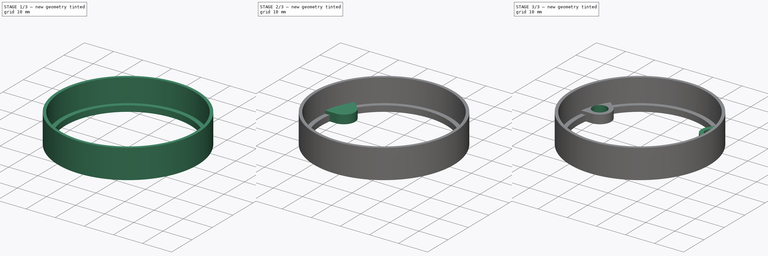
[diagram: build sequence overview — one tinted view per stage of 3, left to right]
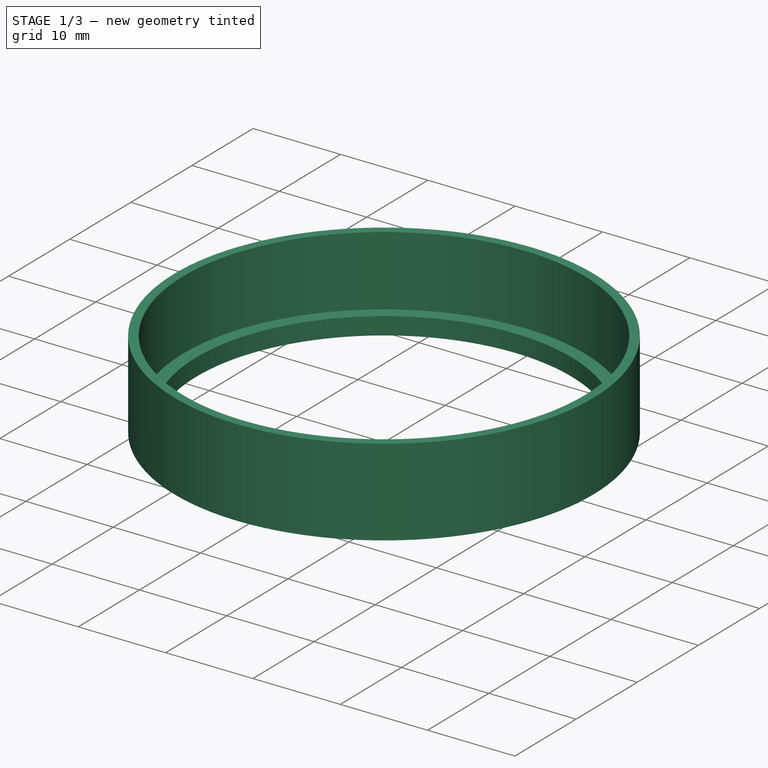
[diagram: stage 1 of 3 — iso view after this stage's code; geometry added in this stage tinted green]
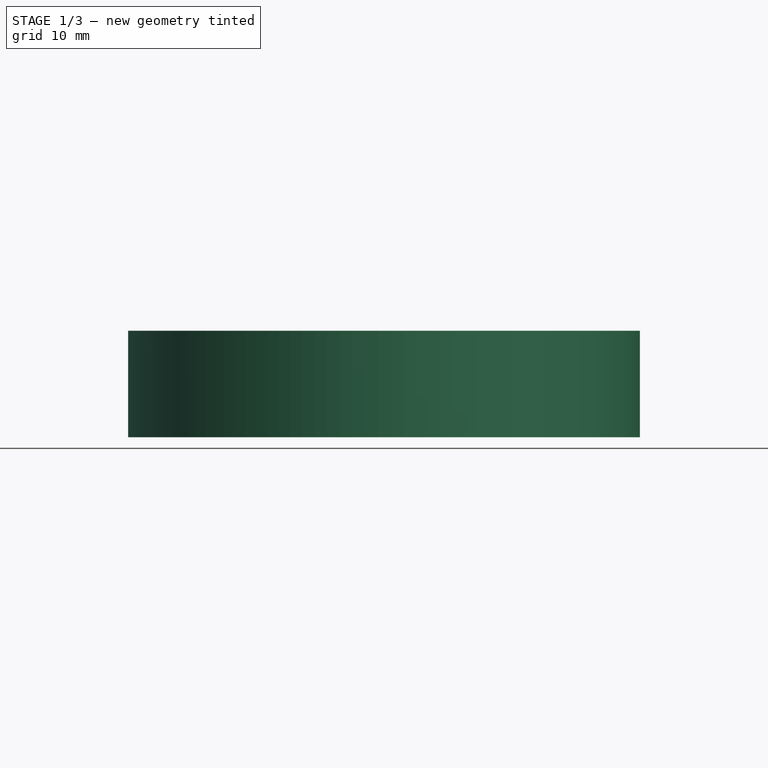
[diagram: stage 1 of 3 — front view after this stage's code; geometry added in this stage tinted green]
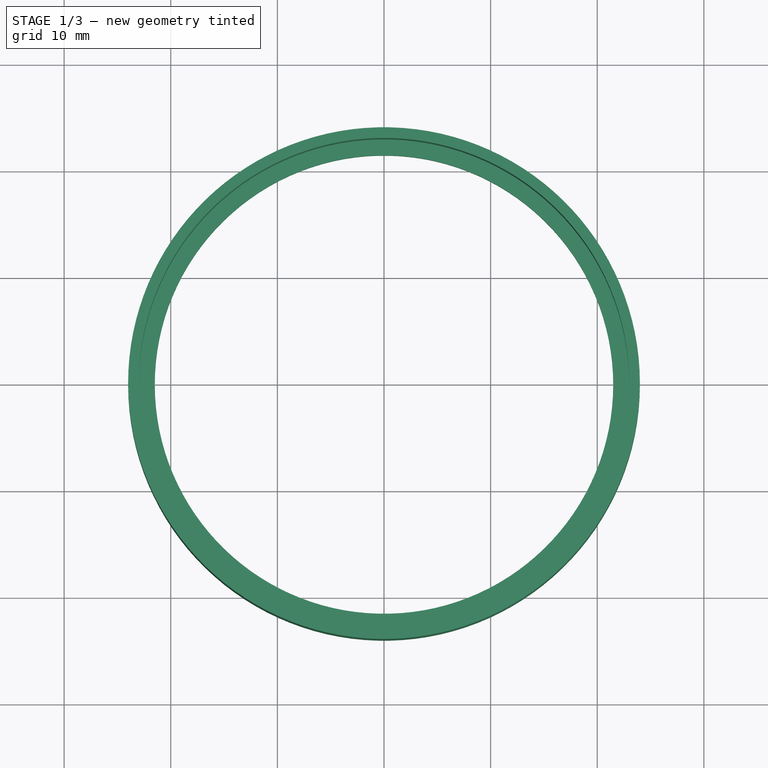
[diagram: stage 1 of 3 — top view after this stage's code; geometry added in this stage tinted green]
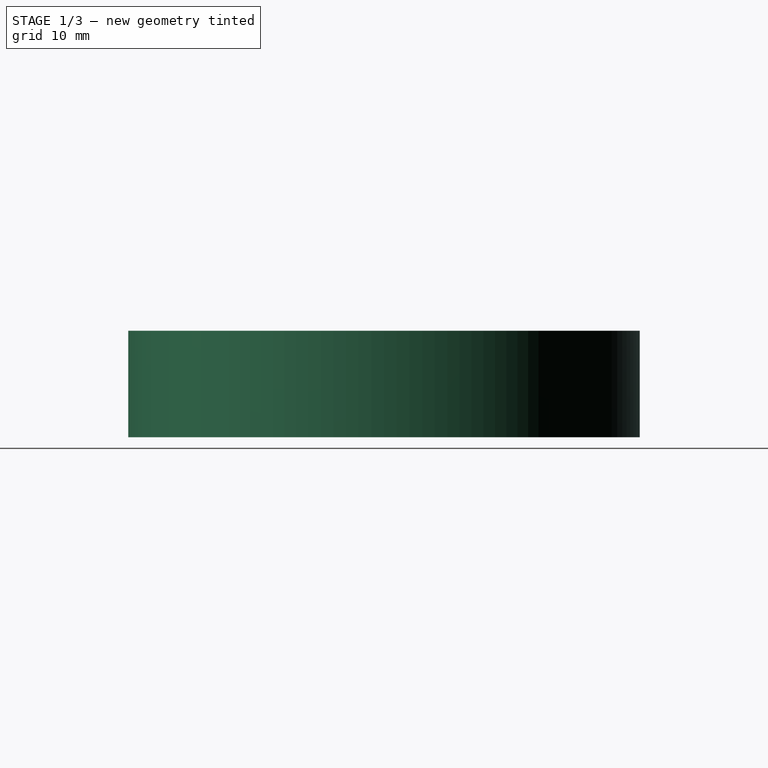
[diagram: stage 1 of 3 — right view after this stage's code; geometry added in this stage tinted green]
FCSTD DOCUMENT  (FreeCAD 0.22R37841 (Git))
Label: cover
License: All rights reserved
LicenseURL: http://en.wikipedia.org/wiki/All_rights_reserved
objects: Sketcher::SketchObject×4, PartDesign::CoordinateSystem×2, PartDesign::Pocket×2, PartDesign::Revolution×1, PartDesign::Pad×1, PartDesign::PolarPattern×1, PartDesign::Body×1, App::Part×1
note: 16 computed .brp shape members not serialized (recipe doc carries the construction recipe); baked Part::Feature solids carry a one-line shape summary decoded from their .brp

FEATURE [PartDesign::CoordinateSystem] LCS_Origin
  AttacherType = Attacher::AttachEngine3D
  AttachmentSupport = -> [X_Axis]
  MapMode = 2
FEATURE [PartDesign::CoordinateSystem] LCS_Origin001
  AttacherType = Attacher::AttachEngine3D
  AttachmentSupport = -> [X_Axis001]
  MapMode = 2
FEATURE [Sketcher::SketchObject] Sketch
  AttachmentSupport = -> [XZ_Plane001]
  FullyConstrained = true
  MapMode = 5
  Placement = pos=(0,0,0) rot=(1,0,0;1.5708rad)
  sketch-geometry (8):
    g0: LineSegment StartX=0 StartY=0 StartZ=0 EndX=0 EndY=13 EndZ=0
    g1: LineSegment StartX=21.5 StartY=5 StartZ=0 EndX=21.5 EndY=3 EndZ=0
    g2: LineSegment StartX=21.5 StartY=3 StartZ=0 EndX=24 EndY=3 EndZ=0
    g3: LineSegment StartX=24 StartY=3 StartZ=0 EndX=24 EndY=13 EndZ=0
    g4: LineSegment StartX=23 StartY=13 StartZ=0 EndX=23 EndY=5 EndZ=0
    g5: LineSegment StartX=23 StartY=5 StartZ=0 EndX=21.5 EndY=5 EndZ=0
    g6: LineSegment StartX=24 StartY=13 StartZ=0 EndX=23 EndY=13 EndZ=0
    g7: GeomPoint X=21.5 Y=4 Z=0
  constraints (22):
    c: Coincident(g0,g-1)
    c: PointOnObject(g0,g-2)
    c: Coincident(g2,g1)
    c: Horizontal(g2)
    c: Coincident(g3,g2)
    c: Vertical(g3)
    c: Vertical(g4)
    c: Coincident(g5,g4)
    c: Coincident(g5,g1)
    c: Vertical(g1)
    c: DistanceX(g0,g4) = 23
    c: Horizontal(g5)
    c: Coincident(g6,g3)
    c: Horizontal(g6)
    c: DistanceY(g1,g1) = 2
    c: DistanceX(g0,g1) = 21.5
    c: Coincident(g6,g4)
    c: DistanceX(g0,g2) = 24
    c: DistanceY(g3,g3) = 10
    c: Symmetric(g1,g1,g7)
    c: DistanceY(g0,g7) = 4
    c: Horizontal(g4,g0)
FEATURE [PartDesign::Revolution] Revolution
  Angle = 360
  Angle2 = 60
  Axis = (0,2e-16,1)
  Base = (0,0,0)
  Placement = pos=(0,0,0) rot=(1,0,0;1.5708rad)
  Profile = -> Sketch
  ReferenceAxis = -> Sketch [V_Axis]
  Reversed = true
  Suppressed = false
  Type = 0
FEATURE [Sketcher::SketchObject] Sketch001
  AttachmentSupport = -> [XY_Plane001]
  FullyConstrained = true
  MapMode = 5
  sketch-geometry (9):
    g0: Circle CenterX=0 CenterY=0 CenterZ=0 NormalX=0 NormalY=0 NormalZ=1 AngleXU=0 Radius=17.5
    g1: Circle CenterX=-17.5 CenterY=0 CenterZ=0 NormalX=0 NormalY=0 NormalZ=1 AngleXU=0 Radius=2.625
    g2: Circle CenterX=-8.75 CenterY=15.1554 CenterZ=0 NormalX=0 NormalY=0 NormalZ=1 AngleXU=0 Radius=2.625
    g3: Circle CenterX=8.75 CenterY=15.1554 CenterZ=0 NormalX=0 NormalY=0 NormalZ=1 AngleXU=0 Radius=2.625
    g4: Circle CenterX=17.5 CenterY=0 CenterZ=0 NormalX=0 NormalY=0 NormalZ=1 AngleXU=0 Radius=2.625
    g5: Circle CenterX=8.75 CenterY=-15.1554 CenterZ=0 NormalX=0 NormalY=0 NormalZ=1 AngleXU=0 Radius=2.625
    g6: Circle CenterX=-8.75 CenterY=-15.1554 CenterZ=0 NormalX=0 NormalY=0 NormalZ=1 AngleXU=0 Radius=2.625
    g7: LineSegment StartX=-8.75 StartY=15.1554 StartZ=0 EndX=0 EndY=0 EndZ=0
    g8: LineSegment StartX=0 StartY=0 StartZ=0 EndX=8.75 EndY=-15.1554 EndZ=0
  constraints (24):
    c: Coincident(g0,g-1)
    c: PointOnObject(g1,g0)
    c: PointOnObject(g2,g0)
    c: PointOnObject(g3,g0)
    c: PointOnObject(g4,g0)
    c: PointOnObject(g5,g0)
    c: PointOnObject(g6,g0)
    c: PointOnObject(g1,g-1)
    c: PointOnObject(g4,g-1)
    c: Equal(g1,g2)
    c: Equal(g2,g3)
    c: Equal(g3,g4)
    c: Equal(g4,g5)
    c: Equal(g5,g6)
    c: Diameter(g4) = 5.25
    c: Coincident(g7,g2)
    c: Coincident(g7,g0)
    c: Coincident(g8,g0)
    c: Coincident(g8,g5)
    c: Parallel(g7,g8)
    c: Vertical(g2,g6)
    c: Vertical(g5,g3)
    c: Angle(g-1,g7) = 2.0944
    c: Diameter(g0) = 35
FEATURE [PartDesign::Pocket] Pocket
  BaseFeature = -> Revolution
  Direction = (0,0,-1)
  Length = 5.5
  Length2 = 5
  Placement = pos=(0,0,0) rot=(1,0,0;1.5708rad)
  Profile = -> Sketch001
  ReferenceAxis = -> Sketch001 [N_Axis]
  Reversed = true
  Suppressed = false
  Type = 0
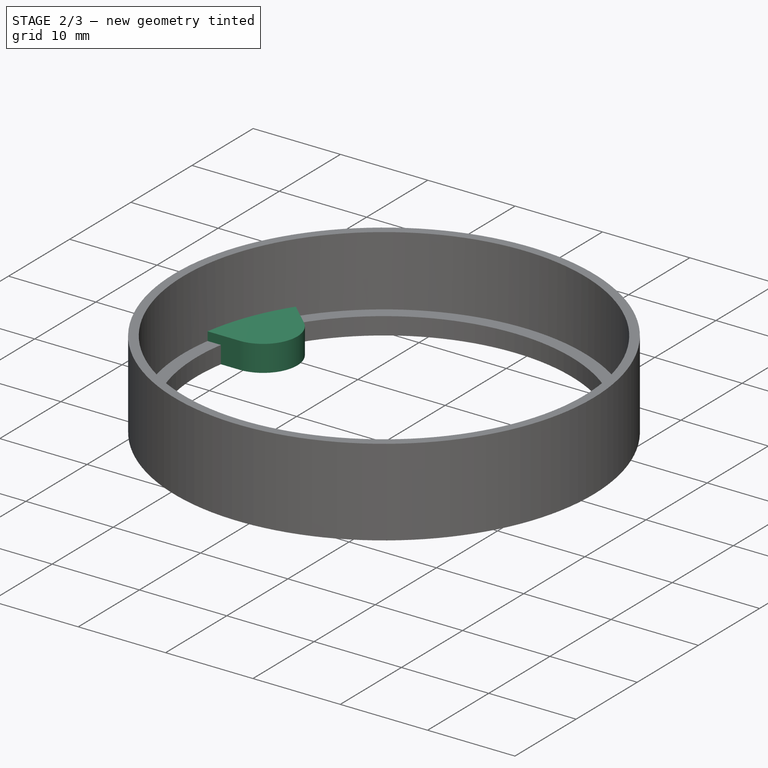
[diagram: stage 2 of 3 — iso view after this stage's code; geometry added in this stage tinted green]
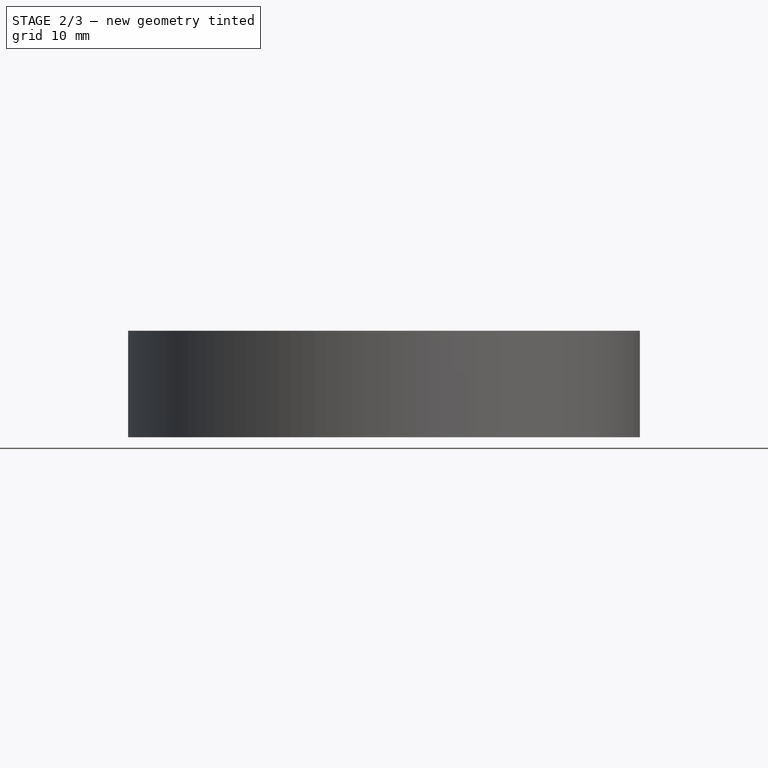
[diagram: stage 2 of 3 — front view after this stage's code; geometry added in this stage tinted green]
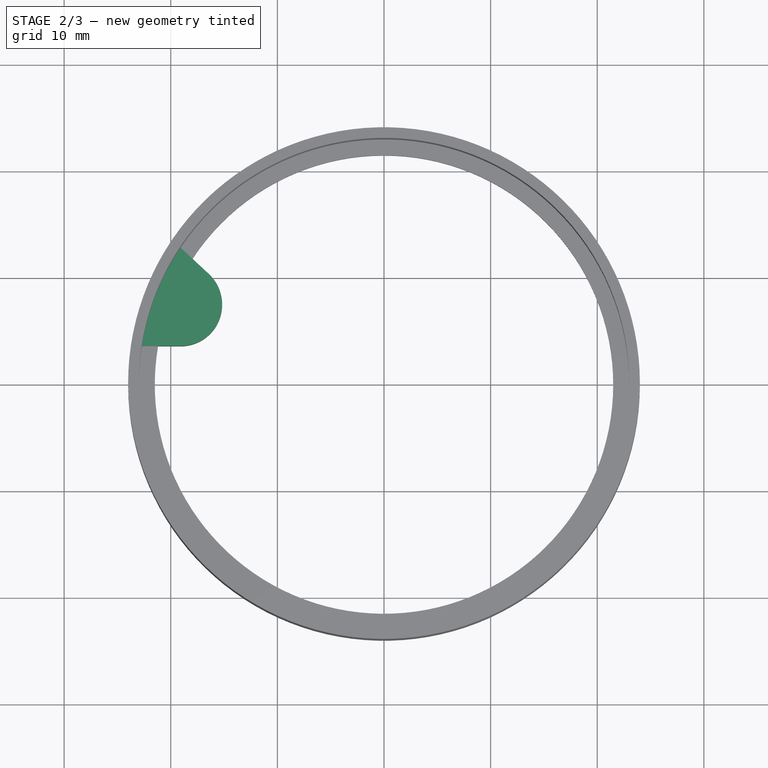
[diagram: stage 2 of 3 — top view after this stage's code; geometry added in this stage tinted green]
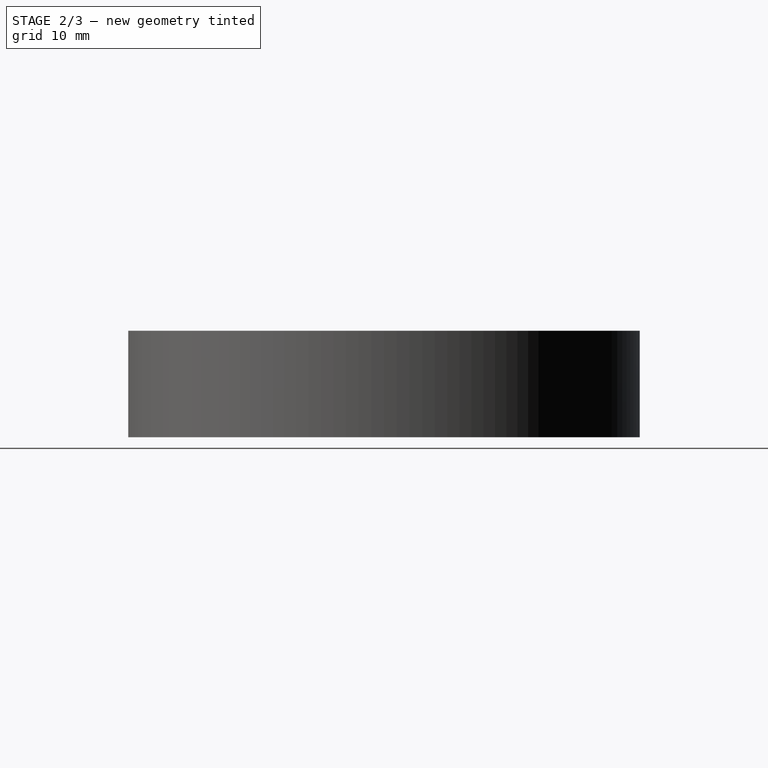
[diagram: stage 2 of 3 — right view after this stage's code; geometry added in this stage tinted green]
FEATURE [Sketcher::SketchObject] Sketch002
  AttachmentSupport = -> [XY_Plane001]
  FullyConstrained = true
  MapMode = 5
  sketch-geometry (14):
    g0: LineSegment StartX=16.0346 StartY=12.7727 StartZ=0 EndX=-3.04425 EndY=20.2727 EndZ=0
    g1: LineSegment StartX=-3.04425 StartY=20.2727 StartZ=0 EndX=-19.0788 EndY=7.49996 EndZ=0
    g2: LineSegment StartX=-19.0788 StartY=7.49996 StartZ=0 EndX=-16.0346 EndY=-12.7727 EndZ=0
    g3: LineSegment StartX=-16.0346 StartY=-12.7727 StartZ=0 EndX=3.04425 EndY=-20.2727 EndZ=0
    g4: LineSegment StartX=3.04425 StartY=-20.2727 StartZ=0 EndX=19.0788 EndY=-7.49996 EndZ=0
    g5: LineSegment StartX=19.0788 StartY=-7.49996 StartZ=0 EndX=16.0346 EndY=12.7727 EndZ=0
    g6: Circle CenterX=0 CenterY=0 CenterZ=0 NormalX=0 NormalY=0 NormalZ=1 AngleXU=0 Radius=20.5
    g7: Circle CenterX=-3.04425 CenterY=20.2727 CenterZ=0 NormalX=0 NormalY=0 NormalZ=1 AngleXU=0 Radius=2.5
    g8: Circle CenterX=16.0346 CenterY=12.7727 CenterZ=0 NormalX=0 NormalY=0 NormalZ=1 AngleXU=0 Radius=2.5
    g9: Circle CenterX=19.0788 CenterY=-7.49996 CenterZ=0 NormalX=0 NormalY=0 NormalZ=1 AngleXU=0 Radius=2.5
    g10: Circle CenterX=3.04425 CenterY=-20.2727 CenterZ=0 NormalX=0 NormalY=0 NormalZ=1 AngleXU=0 Radius=2.5
    g11: Circle CenterX=-16.0346 CenterY=-12.7727 CenterZ=0 NormalX=0 NormalY=0 NormalZ=1 AngleXU=0 Radius=2.5
    g12: Circle CenterX=-19.0788 CenterY=7.49996 CenterZ=0 NormalX=0 NormalY=0 NormalZ=1 AngleXU=0 Radius=2.5
    g13: LineSegment StartX=0 StartY=0 StartZ=0 EndX=-19.0788 EndY=7.49996 EndZ=0
  constraints (30):
    c: Coincident(g0,g1)
    c: Coincident(g1,g2)
    c: Coincident(g2,g3)
    c: Coincident(g3,g4)
    c: Coincident(g4,g5)
    c: Coincident(g5,g0)
    c: Equal(g0, g1-g5) x5
    c: PointOnObject(g0,g6)
    c: PointOnObject(g1,g6)
    c: PointOnObject(g2,g6)
    c: PointOnObject(g3,g6)
    c: PointOnObject(g4,g6)
    c: PointOnObject(g5,g6)
    c: Coincident(g6,g-1)
    c: Coincident(g7,g0)
    c: Coincident(g8,g0)
    c: Coincident(g9,g4)
    c: Coincident(g10,g3)
    c: Coincident(g11,g2)
    c: Coincident(g12,g1)
    c: Equal(g12,g7)
    c: Equal(g7,g8)
    c: Equal(g8,g9)
    c: Equal(g9,g10)
    c: Equal(g10,g11)
    c: Diameter(g12) = 5
    c: Coincident(g13,g6)
    c: Coincident(g13,g12)
    c: Angle(g-1,g13) = 2.76704
    c: Distance(g13) = 20.5
FEATURE [Sketcher::SketchObject] Sketch003
  AttachmentOffset = pos=(0,0,3) rot=(0,0,1;0rad)
  AttachmentSupport = -> [XY_Plane001]
  FullyConstrained = true
  MapMode = 5
  Placement = pos=(0,0,3) rot=(0,0,1;0rad)
  sketch-geometry (7):
    g0: ArcOfCircle CenterX=0 CenterY=0 CenterZ=0 NormalX=0 NormalY=0 NormalZ=1 AngleXU=0 Radius=23 StartAngle=2.54967 EndAngle=2.98442
    g1: ArcOfCircle CenterX=-19.0788 CenterY=7.49996 CenterZ=0 NormalX=0 NormalY=0 NormalZ=1 AngleXU=0 Radius=3.89996 StartAngle=4.71239 EndAngle=7.10489
    g2: LineSegment StartX=-19.0788 StartY=3.6 StartZ=0 EndX=-22.7165 EndY=3.6 EndZ=0
    g3: LineSegment StartX=0 StartY=0 StartZ=0 EndX=-19.9186 EndY=11.5 EndZ=0
    g4: LineSegment StartX=0 StartY=0 StartZ=0 EndX=-19.0788 EndY=7.49996 EndZ=0
    g5: LineSegment StartX=-16.423 StartY=10.3559 StartZ=0 EndX=-19.0869 EndY=12.8331 EndZ=0
    g6: GeomPoint X=-9.15788 Y=3.6 Z=0
  constraints (18):
    c: Coincident(g0,g-1)
    c: Coincident(g2,g0)
    c: Tangent(g2,g1) = 1.5708
    c: Horizontal(g2)
    c: Coincident(g3,g0)
    c: PointOnObject(g3,g0)
    c: Angle(g-1,g3) = 2.61799
    c: Radius(g0) = 23
    c: DistanceY(g0,g0) = 3.6
    c: Coincident(g4,g0)
    c: Coincident(g4,g1)
    c: Angle(g-1,g4) = 2.76704
    c: Distance(g4) = 20.5
    c: Coincident(g5,g0)
    c: Tangent(g5,g1) = -1.5708
    c: PointOnObject(g6,g4)
    c: PointOnObject(g6,g2)
    c: PointOnObject(g6,g5)
FEATURE [PartDesign::Pad] Pad
  BaseFeature = -> Pocket
  Direction = (0,0,1)
  Length = 3
  Length2 = 10
  Placement = pos=(0,0,0) rot=(1,0,0;1.5708rad)
  Profile = -> Sketch003
  ReferenceAxis = -> Sketch003 [N_Axis]
  Suppressed = false
  Type = 0
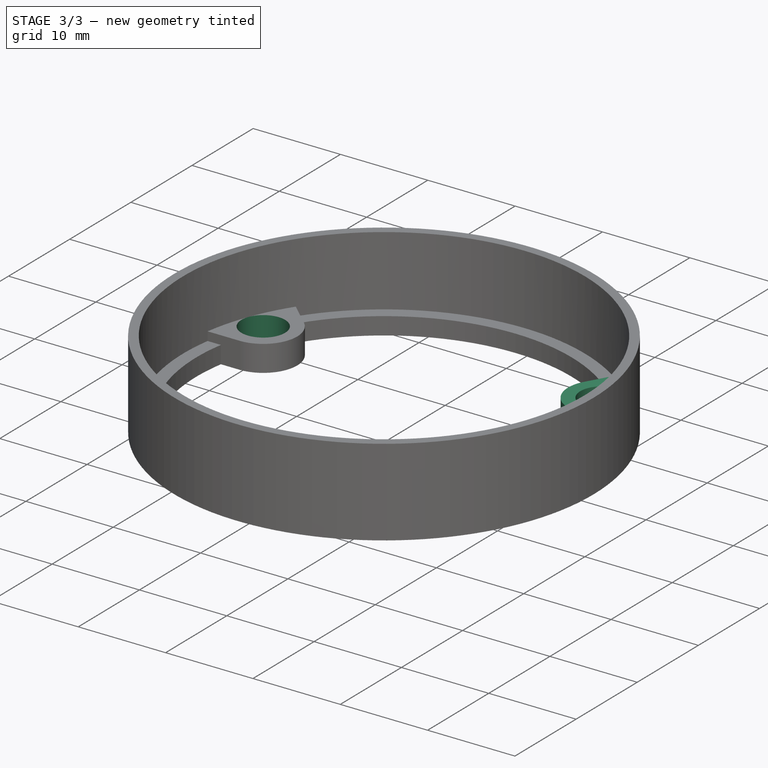
[diagram: stage 3 of 3 — iso view after this stage's code; geometry added in this stage tinted green]
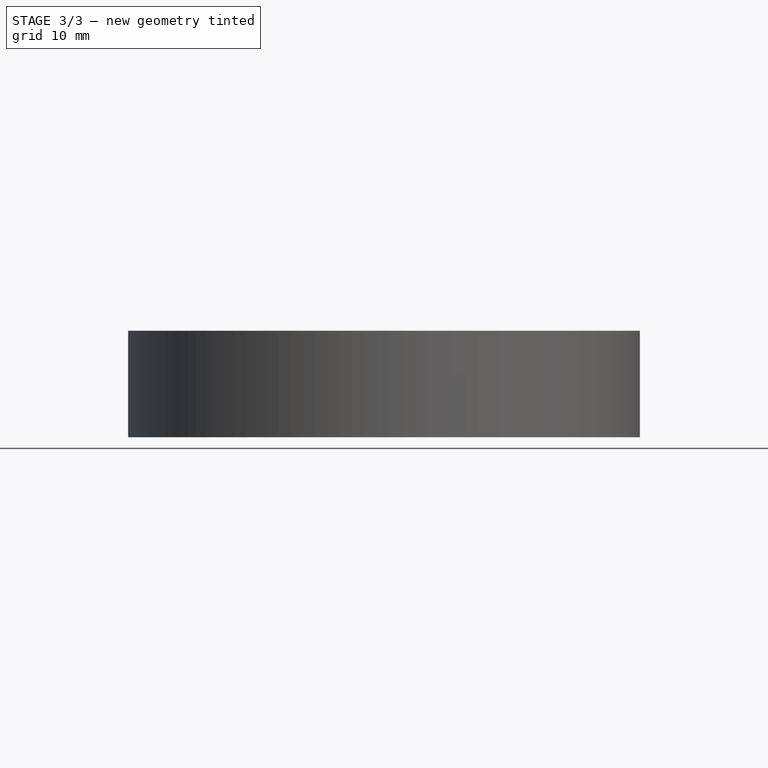
[diagram: stage 3 of 3 — front view after this stage's code; geometry added in this stage tinted green]
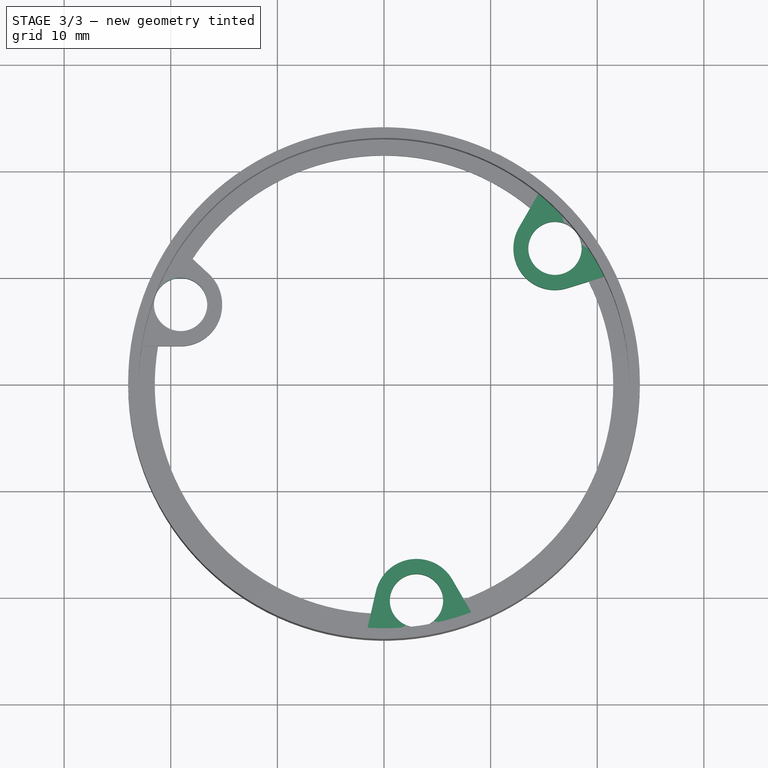
[diagram: stage 3 of 3 — top view after this stage's code; geometry added in this stage tinted green]
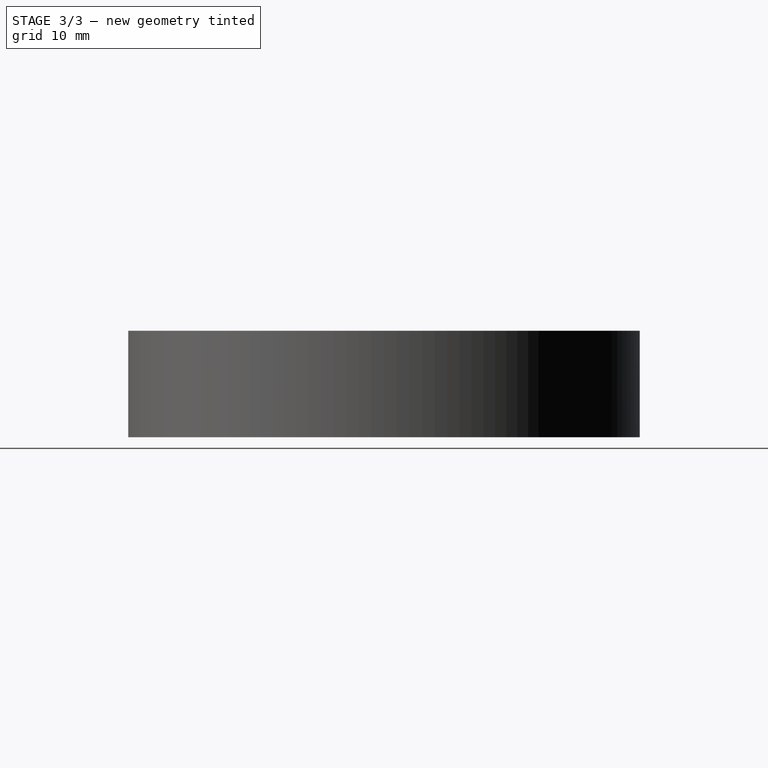
[diagram: stage 3 of 3 — right view after this stage's code; geometry added in this stage tinted green]
FEATURE [PartDesign::PolarPattern] PolarPattern
  Angle = 360
  Axis = -> Sketch003 [N_Axis]
  BaseFeature = -> Pad
  Mode = 0
  Occurrences = 3
  Offset = 120
  Originals = -> [Pad]
  Placement = pos=(0,0,0) rot=(1,0,0;1.5708rad)
  Suppressed = false
  TransformMode = 0
FEATURE [PartDesign::Pocket] Pocket001
  BaseFeature = -> PolarPattern
  Direction = (0,0,-1)
  Length = 5
  Length2 = 5
  Placement = pos=(0,0,0) rot=(1,0,0;1.5708rad)
  Profile = -> Sketch002
  ReferenceAxis = -> Sketch002 [N_Axis]
  Reversed = true
  Suppressed = false
  Type = 1
FEATURE [PartDesign::Body] Body
  AllowCompound = false
  Group = -> [LCS_Origin001,Sketch,Revolution,Sketch001,Pocket,Sketch003,Pad,PolarPattern,Sketch002,Pocket001]
  Origin = -> Origin001
  Tip = -> Pocket001
FEATURE [App::Part] Part
  Group = -> [LCS_Origin,Body]
  Origin = -> Origin
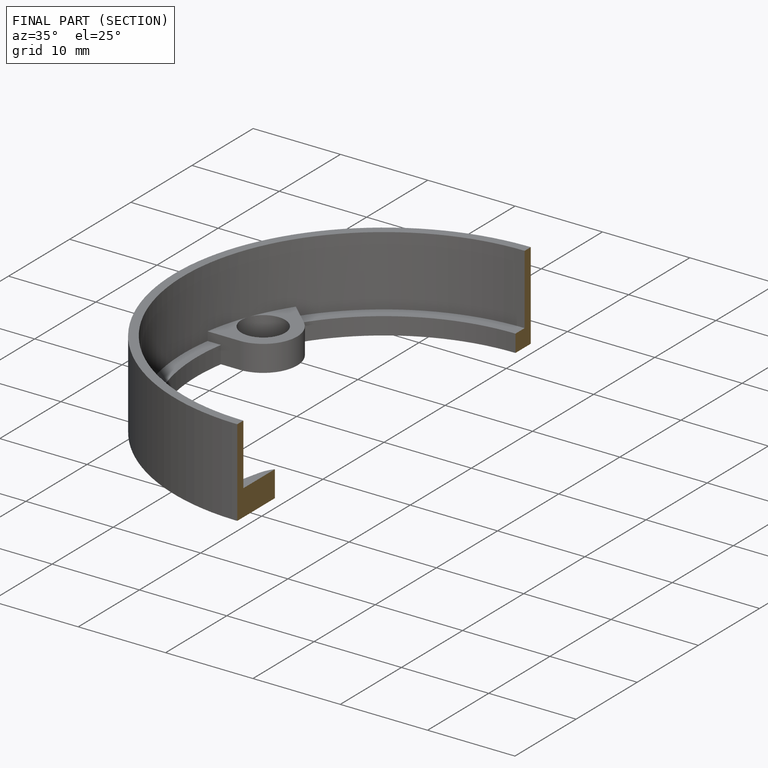
[diagram: finished part — half-section view (interior)]
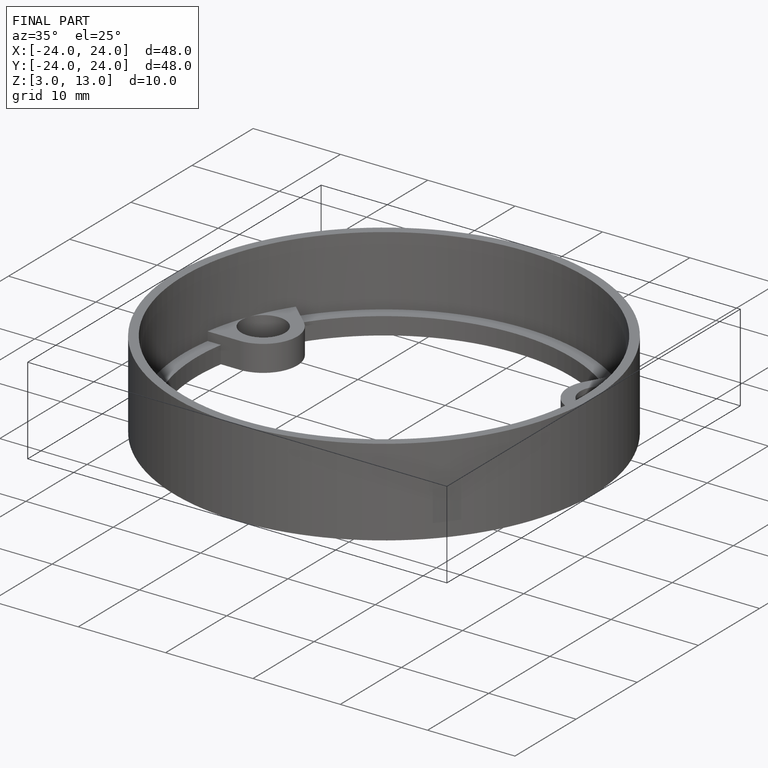
[diagram: finished part — iso view with bounding-box wireframe]
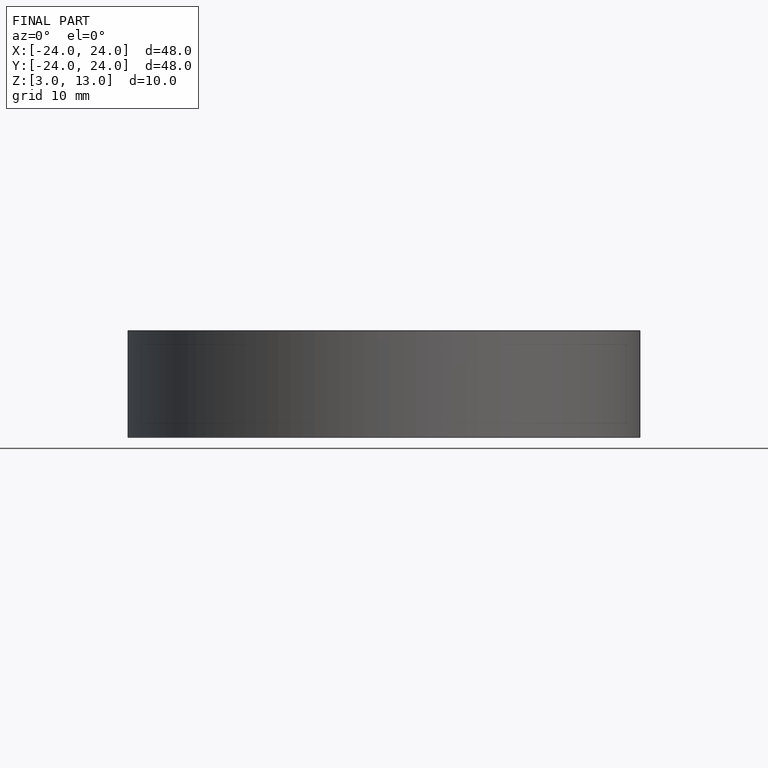
[diagram: finished part — front view with bounding-box wireframe]
